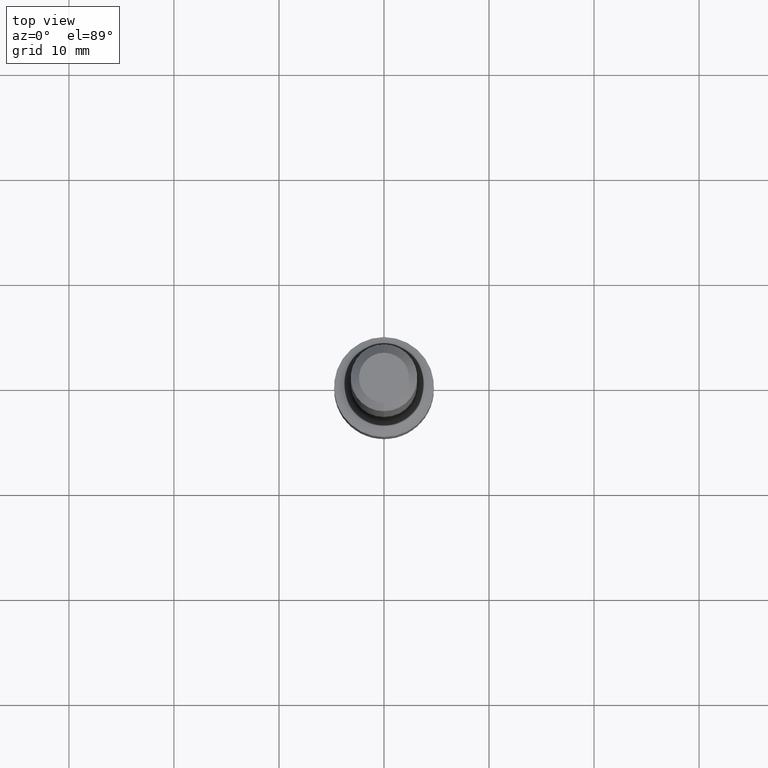
[diagram: clean part render]
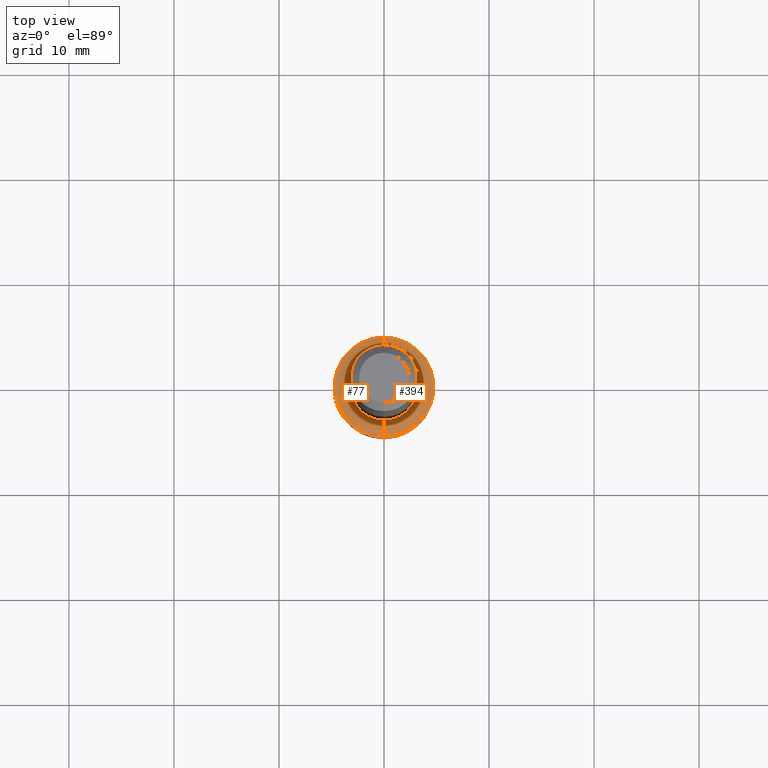
[diagram: same view with one multi-face feature highlighted, each face labeled with its STEP entity id]
A machine part, top view. The highlighted faces form ONE feature: a constant-radius fillet chain: 2 tangent blend faces with common blend radius 1.5875 mm. The faces share edges in the B-rep.
Their STEP definitions:
[1] entity #394 (Torus):
#5 = CIRCLE ( 'NONE', #206, 0.06249999999999912570 ) ;
#9 = CARTESIAN_POINT ( 'NONE',  ( 1.110223024625203675E-15, 0.1249999999999934774, -1.940500000000001224 ) ) ;
#20 = ORIENTED_EDGE ( 'NONE', *, *, #30, .T. ) ;
#29 = FACE_OUTER_BOUND ( 'NONE', #380, .T. ) ;
#30 = EDGE_CURVE ( 'NONE', #491, #174, #332, .T. ) ;
#39 = EDGE_CURVE ( 'NONE', #395, #473, #243, .T. ) ;
#40 = DIRECTION ( 'NONE',  ( -6.982962677686266711E-15, -1.000000000000000000, 2.913971193241888261E-15 ) ) ;
#81 = ORIENTED_EDGE ( 'NONE', *, *, #39, .F. ) ;
#86 = ORIENTED_EDGE ( 'NONE', *, *, #322, .T. ) ;
#93 = CARTESIAN_POINT ( 'NONE',  ( 1.332267629550230644E-15, 0.1874999999999926170, -1.940500000000001224 ) ) ;
#105 = DIRECTION ( 'NONE',  ( -6.982962677686267499E-15, -1.000000000000000000, 0.000000000000000000 ) ) ;
#108 = CARTESIAN_POINT ( 'NONE',  ( -1.309305502066123338E-15, -0.1875000000000061895, -1.940500000000000336 ) ) ;
#142 = AXIS2_PLACEMENT_3D ( 'NONE', #418, #159, #40 ) ;
#143 = DIRECTION ( 'NONE',  ( -1.000000000000000000, 6.982962677686265922E-15, -4.883557194083112340E-29 ) ) ;
#146 = DIRECTION ( 'NONE',  ( 1.000000000000000000, -7.105427357601001070E-15, 4.926600391466559943E-29 ) ) ;
#158 = DIRECTION ( 'NONE',  ( -6.982962677686265922E-15, -1.000000000000000000, 3.514743794979554009E-15 ) ) ;
#159 = DIRECTION ( 'NONE',  ( -2.429224719885951237E-29, 3.514743794979554009E-15, 1.000000000000000000 ) ) ;
#167 = CARTESIAN_POINT ( 'NONE',  ( -1.309305502066122352E-15, -0.1875000000000064670, -2.002999999999999226 ) ) ;
#174 = VERTEX_POINT ( 'NONE', #242 ) ;
#179 = ORIENTED_EDGE ( 'NONE', *, *, #281, .F. ) ;
#192 = DIRECTION ( 'NONE',  ( -6.982962677686266711E-15, -1.000000000000000000, 4.370956789862811683E-15 ) ) ;
#206 = AXIS2_PLACEMENT_3D ( 'NONE', #108, #143, #105 ) ;
#221 = DIRECTION ( 'NONE',  ( 7.105427357601001859E-15, 1.000000000000000000, 0.000000000000000000 ) ) ;
#229 = CIRCLE ( 'NONE', #404, 0.06249999999999912570 ) ;
#242 = CARTESIAN_POINT ( 'NONE',  ( 1.332267629550232814E-15, 0.1874999999999924782, -2.003000000000000558 ) ) ;
#243 = CIRCLE ( 'NONE', #441, 0.1250000000000002776 ) ;
#255 = AXIS2_PLACEMENT_3D ( 'NONE', #422, #489, #158 ) ;
#281 = EDGE_CURVE ( 'NONE', #473, #174, #229, .T. ) ;
#322 = EDGE_CURVE ( 'NONE', #395, #491, #5, .T. ) ;
#325 = TOROIDAL_SURFACE ( 'NONE', #255, 0.1874999999999993894, 0.06249999999999912570 ) ;
#332 = CIRCLE ( 'NONE', #142, 0.1874999999999995282 ) ;
#347 = CARTESIAN_POINT ( 'NONE',  ( 4.713910568938690605E-29, -6.820360334157826489E-15, -1.940500000000000780 ) ) ;
#373 = CARTESIAN_POINT ( 'NONE',  ( -8.728703347107380779E-16, -0.1250000000000071054, -1.940500000000000336 ) ) ;
#380 = EDGE_LOOP ( 'NONE', ( #179, #81, #86, #20 ) ) ;
#394 = ADVANCED_FACE ( 'NONE', ( #29 ), #325, .F. ) ;
#395 = VERTEX_POINT ( 'NONE', #373 ) ;
#404 = AXIS2_PLACEMENT_3D ( 'NONE', #93, #146, #221 ) ;
#418 = CARTESIAN_POINT ( 'NONE',  ( 4.865737113931559965E-29, -7.040031821344046815E-15, -2.003000000000000114 ) ) ;
#422 = CARTESIAN_POINT ( 'NONE',  ( 4.721586727676172690E-29, -6.809367637945929343E-15, -1.940500000000000780 ) ) ;
#441 = AXIS2_PLACEMENT_3D ( 'NONE', #347, #486, #192 ) ;
#473 = VERTEX_POINT ( 'NONE', #9 ) ;
#486 = DIRECTION ( 'NONE',  ( -2.429224719885951237E-29, 3.514743794979554009E-15, 1.000000000000000000 ) ) ;
#489 = DIRECTION ( 'NONE',  ( -2.429224719885951237E-29, 3.514743794979554009E-15, 1.000000000000000000 ) ) ;
#491 = VERTEX_POINT ( 'NONE', #167 ) ;
[2] entity #77 (Torus):
#5 = CIRCLE ( 'NONE', #206, 0.06249999999999912570 ) ;
#9 = CARTESIAN_POINT ( 'NONE',  ( 1.110223024625203675E-15, 0.1249999999999934774, -1.940500000000001224 ) ) ;
#11 = EDGE_CURVE ( 'NONE', #174, #491, #100, .T. ) ;
#14 = AXIS2_PLACEMENT_3D ( 'NONE', #203, #465, #50 ) ;
#50 = DIRECTION ( 'NONE',  ( -6.982962677686265922E-15, -1.000000000000000000, 3.514743794979554009E-15 ) ) ;
#67 = DIRECTION ( 'NONE',  ( -2.429224719885951237E-29, 3.514743794979554009E-15, 1.000000000000000000 ) ) ;
#74 = CARTESIAN_POINT ( 'NONE',  ( 4.865737113931559965E-29, -7.040031821344046815E-15, -2.003000000000000114 ) ) ;
#77 = ADVANCED_FACE ( 'NONE', ( #235 ), #415, .F. ) ;
#93 = CARTESIAN_POINT ( 'NONE',  ( 1.332267629550230644E-15, 0.1874999999999926170, -1.940500000000001224 ) ) ;
#100 = CIRCLE ( 'NONE', #339, 0.1874999999999995282 ) ;
#105 = DIRECTION ( 'NONE',  ( -6.982962677686267499E-15, -1.000000000000000000, 0.000000000000000000 ) ) ;
#108 = CARTESIAN_POINT ( 'NONE',  ( -1.309305502066123338E-15, -0.1875000000000061895, -1.940500000000000336 ) ) ;
#143 = DIRECTION ( 'NONE',  ( -1.000000000000000000, 6.982962677686265922E-15, -4.883557194083112340E-29 ) ) ;
#146 = DIRECTION ( 'NONE',  ( 1.000000000000000000, -7.105427357601001070E-15, 4.926600391466559943E-29 ) ) ;
#167 = CARTESIAN_POINT ( 'NONE',  ( -1.309305502066122352E-15, -0.1875000000000064670, -2.002999999999999226 ) ) ;
#174 = VERTEX_POINT ( 'NONE', #242 ) ;
#186 = CIRCLE ( 'NONE', #384, 0.1250000000000002776 ) ;
#203 = CARTESIAN_POINT ( 'NONE',  ( 4.721586727676172690E-29, -6.809367637945929343E-15, -1.940500000000000780 ) ) ;
#206 = AXIS2_PLACEMENT_3D ( 'NONE', #108, #143, #105 ) ;
#211 = EDGE_LOOP ( 'NONE', ( #490, #371, #268, #358 ) ) ;
#221 = DIRECTION ( 'NONE',  ( 7.105427357601001859E-15, 1.000000000000000000, 0.000000000000000000 ) ) ;
#226 = CARTESIAN_POINT ( 'NONE',  ( 4.713910568938690605E-29, -6.820360334157826489E-15, -1.940500000000000780 ) ) ;
#229 = CIRCLE ( 'NONE', #404, 0.06249999999999912570 ) ;
#235 = FACE_OUTER_BOUND ( 'NONE', #211, .T. ) ;
#242 = CARTESIAN_POINT ( 'NONE',  ( 1.332267629550232814E-15, 0.1874999999999924782, -2.003000000000000558 ) ) ;
#268 = ORIENTED_EDGE ( 'NONE', *, *, #11, .T. ) ;
#271 = DIRECTION ( 'NONE',  ( -6.982962677686266711E-15, -1.000000000000000000, 2.913971193241888261E-15 ) ) ;
#281 = EDGE_CURVE ( 'NONE', #473, #174, #229, .T. ) ;
#298 = DIRECTION ( 'NONE',  ( -2.429224719885951237E-29, 3.514743794979554009E-15, 1.000000000000000000 ) ) ;
#313 = EDGE_CURVE ( 'NONE', #473, #395, #186, .T. ) ;
#322 = EDGE_CURVE ( 'NONE', #395, #491, #5, .T. ) ;
#326 = DIRECTION ( 'NONE',  ( -6.982962677686266711E-15, -1.000000000000000000, 4.370956789862811683E-15 ) ) ;
#339 = AXIS2_PLACEMENT_3D ( 'NONE', #74, #298, #271 ) ;
#358 = ORIENTED_EDGE ( 'NONE', *, *, #322, .F. ) ;
#371 = ORIENTED_EDGE ( 'NONE', *, *, #281, .T. ) ;
#373 = CARTESIAN_POINT ( 'NONE',  ( -8.728703347107380779E-16, -0.1250000000000071054, -1.940500000000000336 ) ) ;
#384 = AXIS2_PLACEMENT_3D ( 'NONE', #226, #67, #326 ) ;
#395 = VERTEX_POINT ( 'NONE', #373 ) ;
#404 = AXIS2_PLACEMENT_3D ( 'NONE', #93, #146, #221 ) ;
#415 = TOROIDAL_SURFACE ( 'NONE', #14, 0.1874999999999993894, 0.06249999999999912570 ) ;
#465 = DIRECTION ( 'NONE',  ( -2.429224719885951237E-29, 3.514743794979554009E-15, 1.000000000000000000 ) ) ;
#473 = VERTEX_POINT ( 'NONE', #9 ) ;
#490 = ORIENTED_EDGE ( 'NONE', *, *, #313, .F. ) ;
#491 = VERTEX_POINT ( 'NONE', #167 ) ;